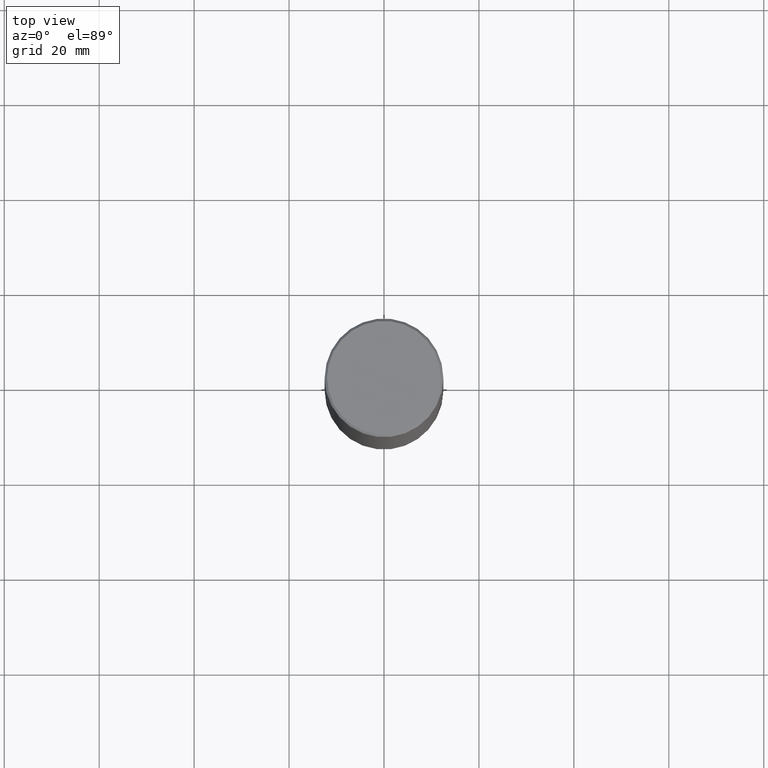
[diagram: clean part render]
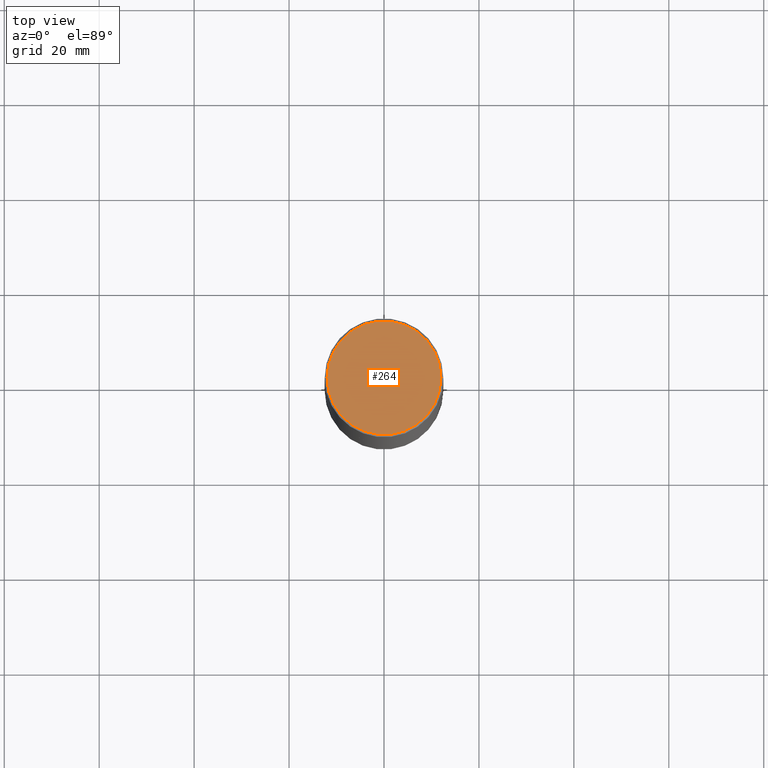
[diagram: same view with one face highlighted and labeled with its STEP entity id]
A machine part, top view. The second image highlights one B-rep face of the part: STEP entity #264.
In plain terms, the highlighted planar face has unit normal (0, -0, -1).
Its self-contained STEP definition (entity closure, byte-faithful):
#2 = PLANE ( 'NONE',  #48 ) ;
#15 = AXIS2_PLACEMENT_3D ( 'NONE', #259, #178, #320 ) ;
#48 = AXIS2_PLACEMENT_3D ( 'NONE', #323, #61, #296 ) ;
#61 = DIRECTION ( 'NONE',  ( 2.438088387897960049E-29, -3.491481338843145188E-15, -1.000000000000000000 ) ) ;
#84 = EDGE_LOOP ( 'NONE', ( #210, #351 ) ) ;
#115 = VERTEX_POINT ( 'NONE', #173 ) ;
#146 = VERTEX_POINT ( 'NONE', #202 ) ;
#148 = CIRCLE ( 'NONE', #253, 0.4721499999999996255 ) ;
#173 = CARTESIAN_POINT ( 'NONE',  ( -0.4721499999999996255, 3.331920641657999252E-15, 8.537024980177643606E-18 ) ) ;
#178 = DIRECTION ( 'NONE',  ( -2.445468806185136597E-29, 3.491481338843145583E-15, 1.000000000000000000 ) ) ;
#202 = CARTESIAN_POINT ( 'NONE',  ( 0.4721499999999996255, -3.342703923013973396E-15, 8.537024980224040028E-18 ) ) ;
#204 = FACE_OUTER_BOUND ( 'NONE', #84, .T. ) ;
#210 = ORIENTED_EDGE ( 'NONE', *, *, #219, .T. ) ;
#211 = CIRCLE ( 'NONE', #15, 0.4721499999999996255 ) ;
#219 = EDGE_CURVE ( 'NONE', #115, #146, #211, .T. ) ;
#235 = DIRECTION ( 'NONE',  ( 1.000000000000000000, -6.982962677686265922E-15, 4.876006802227162976E-29 ) ) ;
#250 = EDGE_CURVE ( 'NONE', #146, #115, #148, .T. ) ;
#253 = AXIS2_PLACEMENT_3D ( 'NONE', #294, #265, #235 ) ;
#259 = CARTESIAN_POINT ( 'NONE',  ( -2.087702828670439639E-46, 2.980686340760894400E-32, 8.537024980200822558E-18 ) ) ;
#264 = ADVANCED_FACE ( 'NONE', ( #204 ), #2, .F. ) ;
#265 = DIRECTION ( 'NONE',  ( -2.445468806185136597E-29, 3.491481338843145583E-15, 1.000000000000000000 ) ) ;
#294 = CARTESIAN_POINT ( 'NONE',  ( -2.087702828670439639E-46, 2.980686340760894400E-32, 8.537024980200822558E-18 ) ) ;
#296 = DIRECTION ( 'NONE',  ( -1.000000000000000000, 6.982962677686265922E-15, -4.876176775795935793E-29 ) ) ;
#320 = DIRECTION ( 'NONE',  ( 1.000000000000000000, -6.982962677686265922E-15, 4.876006802227162976E-29 ) ) ;
#323 = CARTESIAN_POINT ( 'NONE',  ( 3.297005828269567997E-15, 0.4721499999999996255, -1.644234401644689488E-15 ) ) ;
#351 = ORIENTED_EDGE ( 'NONE', *, *, #250, .T. ) ;